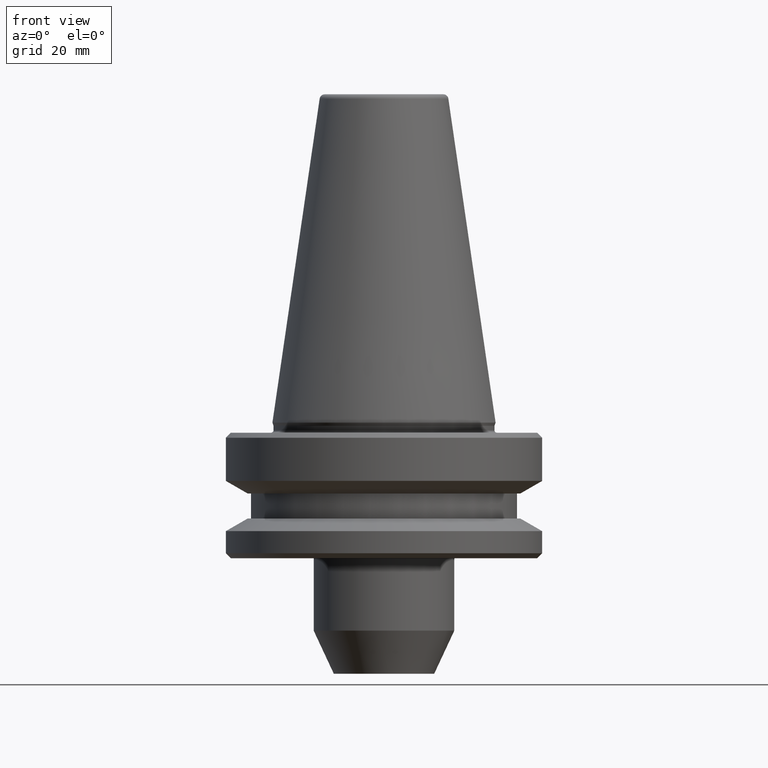
[diagram: clean part render]
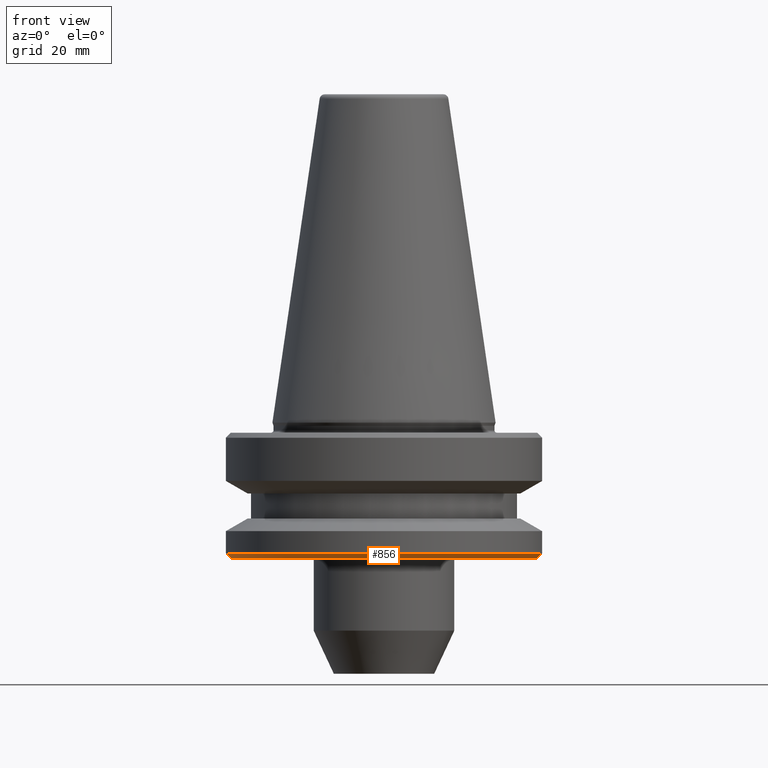
[diagram: same view with one face highlighted and labeled with its STEP entity id]
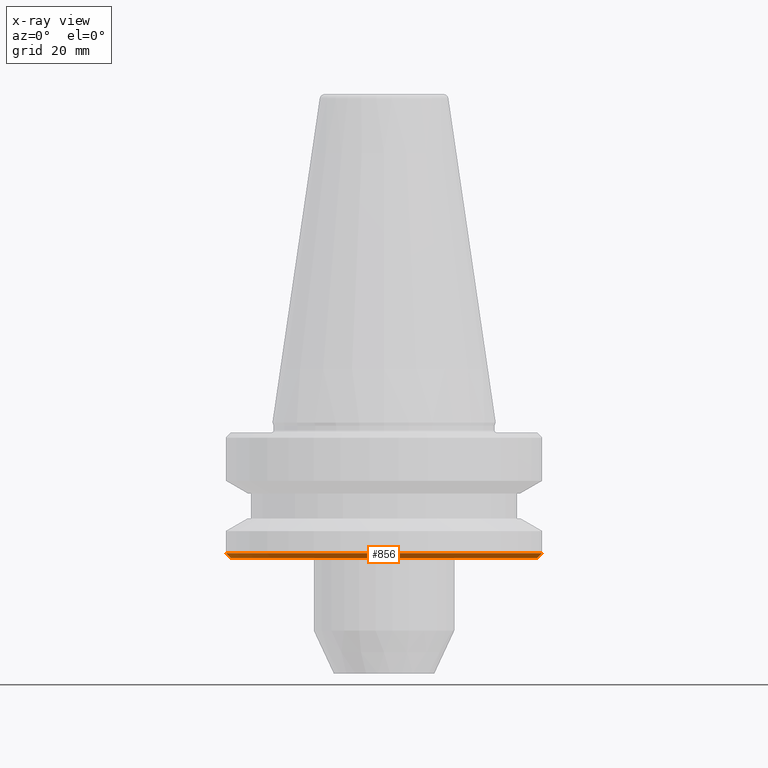
[diagram: x-ray of the same camera — body ghosted, the highlighted face saturated]
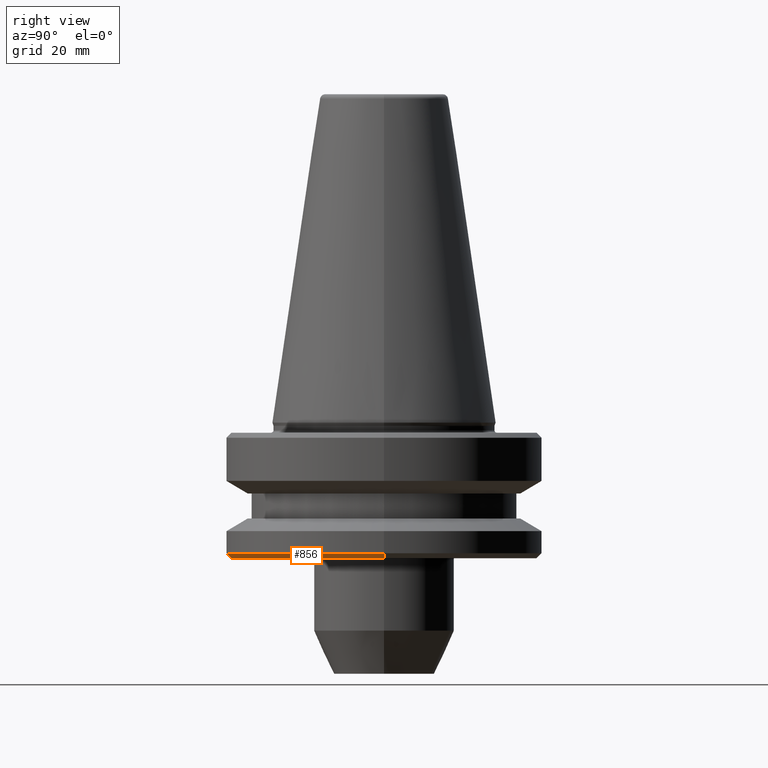
[diagram: same view with one face highlighted and labeled with its STEP entity id]
A machine part, front view. The second image highlights one B-rep face of the part: STEP entity #856.
The next image is the same camera in x-ray: the body ghosted, the highlighted face saturated — about 0% of this face is hidden behind the body in this view.
A second angle (right view) of the same face is appended — the face is thin or edge-on in the first view.
In plain terms, the highlighted conical surface has half-angle 45 deg.
Its self-contained STEP definition (entity closure, byte-faithful):
#30 = VECTOR ( 'NONE', #670, 1000.000000000000000 ) ;
#71 = DIRECTION ( 'NONE',  ( -0.0000000000000000000, -0.0000000000000000000, 1.000000000000000000 ) ) ;
#72 = CARTESIAN_POINT ( 'NONE',  ( -30.49999999999930400, 3.735172737399342300E-015, -27.00000000000113300 ) ) ;
#74 = CARTESIAN_POINT ( 'NONE',  ( 0.0000000000000000000, 0.0000000000000000000, -27.00000000000113300 ) ) ;
#86 = EDGE_CURVE ( 'NONE', #630, #780, #215, .T. ) ;
#129 = CARTESIAN_POINT ( 'NONE',  ( 30.49999999999930400, 0.0000000000000000000, -27.00000000000113300 ) ) ;
#174 = EDGE_CURVE ( 'NONE', #669, #401, #959, .T. ) ;
#215 = LINE ( 'NONE', #129, #30 ) ;
#229 = ORIENTED_EDGE ( 'NONE', *, *, #579, .T. ) ;
#289 = DIRECTION ( 'NONE',  ( 1.000000000000000000, 0.0000000000000000000, 0.0000000000000000000 ) ) ;
#297 = CARTESIAN_POINT ( 'NONE',  ( -31.49999999999986100, 3.857637417314145300E-015, -26.00000000000057900 ) ) ;
#401 = VERTEX_POINT ( 'NONE', #297 ) ;
#404 = FACE_OUTER_BOUND ( 'NONE', #996, .T. ) ;
#423 = ORIENTED_EDGE ( 'NONE', *, *, #86, .T. ) ;
#456 = EDGE_CURVE ( 'NONE', #401, #780, #766, .T. ) ;
#491 = DIRECTION ( 'NONE',  ( 1.000000000000000000, 0.0000000000000000000, 0.0000000000000000000 ) ) ;
#495 = CARTESIAN_POINT ( 'NONE',  ( -30.49999999999930400, 3.796405077356743000E-015, -27.00000000000113300 ) ) ;
#514 = CARTESIAN_POINT ( 'NONE',  ( 0.0000000000000000000, 0.0000000000000000000, -27.00000000000113300 ) ) ;
#546 = CARTESIAN_POINT ( 'NONE',  ( 30.49999999999930400, 0.0000000000000000000, -27.00000000000113300 ) ) ;
#579 = EDGE_CURVE ( 'NONE', #669, #630, #931, .T. ) ;
#580 = DIRECTION ( 'NONE',  ( 1.000000000000000000, 0.0000000000000000000, 0.0000000000000000000 ) ) ;
#618 = ORIENTED_EDGE ( 'NONE', *, *, #456, .F. ) ;
#630 = VERTEX_POINT ( 'NONE', #546 ) ;
#669 = VERTEX_POINT ( 'NONE', #495 ) ;
#670 = DIRECTION ( 'NONE',  ( 0.7071067811865474600, 0.0000000000000000000, 0.7071067811865475700 ) ) ;
#715 = AXIS2_PLACEMENT_3D ( 'NONE', #514, #754, #289 ) ;
#754 = DIRECTION ( 'NONE',  ( -0.0000000000000000000, -0.0000000000000000000, 1.000000000000000000 ) ) ;
#759 = DIRECTION ( 'NONE',  ( -0.7071067811865474600, 8.659560562354931600E-017, 0.7071067811865475700 ) ) ;
#766 = CIRCLE ( 'NONE', #940, 31.49999999999986100 ) ;
#780 = VERTEX_POINT ( 'NONE', #994 ) ;
#849 = VECTOR ( 'NONE', #759, 1000.000000000000000 ) ;
#850 = CONICAL_SURFACE ( 'NONE', #890, 30.49999999999930400, 0.7853981633974482800 ) ;
#856 = ADVANCED_FACE ( 'NONE', ( #404 ), #850, .T. ) ;
#890 = AXIS2_PLACEMENT_3D ( 'NONE', #74, #914, #491 ) ;
#903 = ORIENTED_EDGE ( 'NONE', *, *, #174, .F. ) ;
#914 = DIRECTION ( 'NONE',  ( -0.0000000000000000000, -0.0000000000000000000, 1.000000000000000000 ) ) ;
#931 = CIRCLE ( 'NONE', #715, 30.49999999999930400 ) ;
#940 = AXIS2_PLACEMENT_3D ( 'NONE', #991, #71, #580 ) ;
#959 = LINE ( 'NONE', #72, #849 ) ;
#991 = CARTESIAN_POINT ( 'NONE',  ( 0.0000000000000000000, 0.0000000000000000000, -26.00000000000057900 ) ) ;
#994 = CARTESIAN_POINT ( 'NONE',  ( 31.49999999999986100, 0.0000000000000000000, -26.00000000000057900 ) ) ;
#996 = EDGE_LOOP ( 'NONE', ( #903, #229, #423, #618 ) ) ;